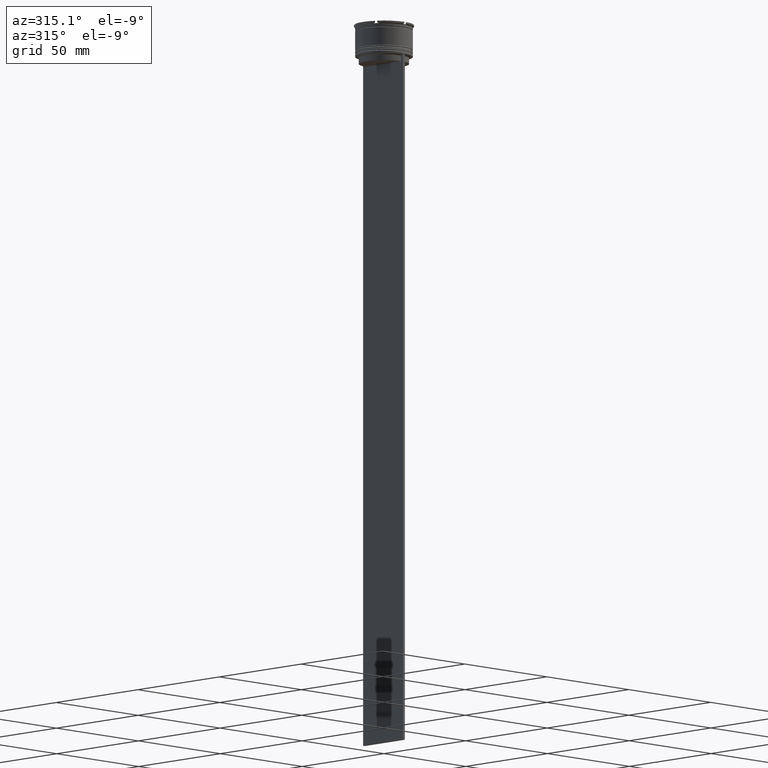
[diagram: clean part render]
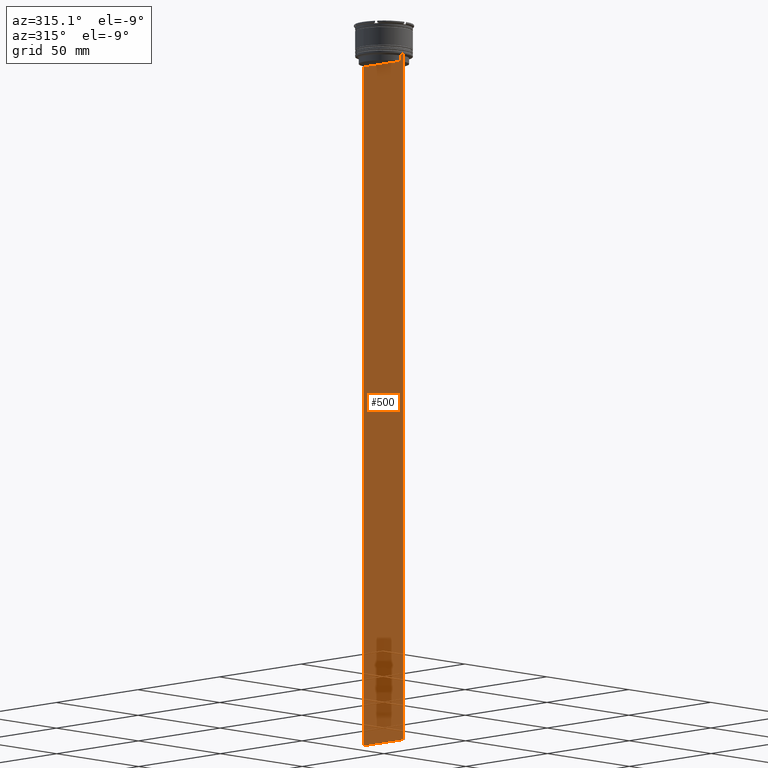
[diagram: same view with one face highlighted and labeled with its STEP entity id]
A machine part, auxiliary view. The second image highlights one B-rep face of the part: STEP entity #500.
In plain terms, the highlighted planar face has unit normal (-1, 0, 0).
Its self-contained STEP definition (entity closure, byte-faithful):
#56 = DIRECTION ( 'NONE',  ( 0.000000000000000000, -1.000000000000000000, 0.000000000000000000 ) ) ;
#61 = CARTESIAN_POINT ( 'NONE',  ( -0.4999999999999997780, 11.22219891375843304, -14.16667035472756808 ) ) ;
#83 = VERTEX_POINT ( 'NONE', #2426 ) ;
#157 = CARTESIAN_POINT ( 'NONE',  ( -0.4999999999999997780, 10.88852607105296322, -14.50000000000000000 ) ) ;
#241 = DIRECTION ( 'NONE',  ( 0.000000000000000000, -1.000000000000000000, 0.000000000000000000 ) ) ;
#290 = LINE ( 'NONE', #1189, #846 ) ;
#335 = VERTEX_POINT ( 'NONE', #813 ) ;
#364 = DIRECTION ( 'NONE',  ( 0.000000000000000000, 0.000000000000000000, -1.000000000000000000 ) ) ;
#387 = CARTESIAN_POINT ( 'NONE',  ( -0.4999999999999997780, 11.38902980942626719, -14.00000000000000178 ) ) ;
#393 = EDGE_CURVE ( 'NONE', #2155, #495, #1948, .T. ) ;
#495 = VERTEX_POINT ( 'NONE', #2180 ) ;
#500 = ADVANCED_FACE ( 'NONE', ( #2194 ), #1361, .T. ) ;
#523 = CARTESIAN_POINT ( 'NONE',  ( -0.4999999999999997780, -11.22219891450652973, -14.16667035398018903 ) ) ;
#535 = CARTESIAN_POINT ( 'NONE',  ( -0.4999999999999997780, -10.88852607105296322, -14.50000000000000000 ) ) ;
#540 = VERTEX_POINT ( 'NONE', #1348 ) ;
#621 = VERTEX_POINT ( 'NONE', #387 ) ;
#659 = VECTOR ( 'NONE', #1637, 1000.000000000000000 ) ;
#679 = VERTEX_POINT ( 'NONE', #157 ) ;
#688 = DIRECTION ( 'NONE',  ( 0.000000000000000000, 0.000000000000000000, 1.000000000000000000 ) ) ;
#721 = ORIENTED_EDGE ( 'NONE', *, *, #2238, .F. ) ;
#793 = CARTESIAN_POINT ( 'NONE',  ( -0.4999999999999997780, -12.25000000000000711, -14.00000000000000178 ) ) ;
#799 = DIRECTION ( 'NONE',  ( 0.000000000000000000, 0.000000000000000000, -1.000000000000000000 ) ) ;
#813 = CARTESIAN_POINT ( 'NONE',  ( -0.4999999999999997780, -11.38902980942626719, -14.00000000000000178 ) ) ;
#846 = VECTOR ( 'NONE', #364, 1000.000000000000000 ) ;
#900 = EDGE_CURVE ( 'NONE', #540, #1810, #1529, .T. ) ;
#931 = VECTOR ( 'NONE', #2228, 1000.000000000000000 ) ;
#954 = VERTEX_POINT ( 'NONE', #2548 ) ;
#979 = DIRECTION ( 'NONE',  ( -0.000000000000000000, -0.000000000000000000, 1.000000000000000000 ) ) ;
#1004 = CARTESIAN_POINT ( 'NONE',  ( -0.4999999999999997780, -10.88852607105296322, 0.000000000000000000 ) ) ;
#1036 = LINE ( 'NONE', #793, #659 ) ;
#1065 = CARTESIAN_POINT ( 'NONE',  ( -0.4999999999999997780, -10.88852607105296322, -14.50000000000000000 ) ) ;
#1072 = ORIENTED_EDGE ( 'NONE', *, *, #1636, .F. ) ;
#1116 = VECTOR ( 'NONE', #241, 1000.000000000000000 ) ;
#1189 = CARTESIAN_POINT ( 'NONE',  ( -0.4999999999999997780, 12.24999999999999289, 10.52039967047845792 ) ) ;
#1211 = ORIENTED_EDGE ( 'NONE', *, *, #2574, .T. ) ;
#1214 = EDGE_CURVE ( 'NONE', #621, #679, #1317, .T. ) ;
#1241 = VECTOR ( 'NONE', #979, 1000.000000000000000 ) ;
#1243 = VECTOR ( 'NONE', #799, 1000.000000000000000 ) ;
#1273 = ORIENTED_EDGE ( 'NONE', *, *, #900, .F. ) ;
#1317 = B_SPLINE_CURVE_WITH_KNOTS ( 'NONE', 3,
 ( #2684, #61, #2274, #2247 ),
 .UNSPECIFIED., .F., .F.,
 ( 4, 4 ),
 ( 0.01935560801904634073, 0.02006307108468586772 ),
 .UNSPECIFIED. ) ;
#1344 = ORIENTED_EDGE ( 'NONE', *, *, #1771, .F. ) ;
#1348 = CARTESIAN_POINT ( 'NONE',  ( -0.4999999999999997780, 10.88852607105296144, -17.00000000000000000 ) ) ;
#1361 = PLANE ( 'NONE',  #2607 ) ;
#1380 = LINE ( 'NONE', #1984, #931 ) ;
#1381 = B_SPLINE_CURVE_WITH_KNOTS ( 'NONE', 3,
 ( #535, #2465, #523, #1399 ),
 .UNSPECIFIED., .F., .F.,
 ( 4, 4 ),
 ( 0.05041323384703224469, 0.05112713601261603680 ),
 .UNSPECIFIED. ) ;
#1399 = CARTESIAN_POINT ( 'NONE',  ( -0.4999999999999997780, -11.38902980942626719, -14.00000000000000178 ) ) ;
#1420 = CARTESIAN_POINT ( 'NONE',  ( -0.4999999999999997780, -12.25000000000000711, -14.00000000000000178 ) ) ;
#1521 = ORIENTED_EDGE ( 'NONE', *, *, #2023, .F. ) ;
#1529 = LINE ( 'NONE', #2392, #1116 ) ;
#1636 = EDGE_CURVE ( 'NONE', #335, #2155, #2000, .T. ) ;
#1637 = DIRECTION ( 'NONE',  ( 0.000000000000000000, -1.000000000000000000, 0.000000000000000000 ) ) ;
#1745 = CARTESIAN_POINT ( 'NONE',  ( -0.4999999999999997780, -12.25000000000000711, 10.52039967047845792 ) ) ;
#1771 = EDGE_CURVE ( 'NONE', #1810, #1926, #1852, .T. ) ;
#1796 = EDGE_CURVE ( 'NONE', #954, #621, #1036, .T. ) ;
#1800 = VECTOR ( 'NONE', #2711, 1000.000000000000000 ) ;
#1810 = VERTEX_POINT ( 'NONE', #2294 ) ;
#1849 = LINE ( 'NONE', #2700, #1800 ) ;
#1852 = LINE ( 'NONE', #1004, #1241 ) ;
#1884 = CARTESIAN_POINT ( 'NONE',  ( -0.4999999999999997780, -12.25000000000000711, 10.52039967047845792 ) ) ;
#1926 = VERTEX_POINT ( 'NONE', #1065 ) ;
#1930 = ORIENTED_EDGE ( 'NONE', *, *, #1214, .F. ) ;
#1948 = LINE ( 'NONE', #1884, #1243 ) ;
#1973 = DIRECTION ( 'NONE',  ( -1.000000000000000000, 0.000000000000000000, 0.000000000000000000 ) ) ;
#1984 = CARTESIAN_POINT ( 'NONE',  ( -0.4999999999999997780, -12.25000000000000711, -314.0000000000000000 ) ) ;
#2000 = LINE ( 'NONE', #2220, #2163 ) ;
#2014 = ORIENTED_EDGE ( 'NONE', *, *, #393, .F. ) ;
#2023 = EDGE_CURVE ( 'NONE', #495, #83, #1380, .T. ) ;
#2135 = EDGE_CURVE ( 'NONE', #679, #540, #1849, .T. ) ;
#2136 = ORIENTED_EDGE ( 'NONE', *, *, #2135, .F. ) ;
#2155 = VERTEX_POINT ( 'NONE', #1420 ) ;
#2162 = EDGE_LOOP ( 'NONE', ( #1930, #2413, #1211, #1521, #2014, #1072, #721, #1344, #1273, #2136 ) ) ;
#2163 = VECTOR ( 'NONE', #56, 1000.000000000000000 ) ;
#2180 = CARTESIAN_POINT ( 'NONE',  ( -0.4999999999999997780, -12.25000000000000711, -314.0000000000000000 ) ) ;
#2194 = FACE_OUTER_BOUND ( 'NONE', #2162, .T. ) ;
#2220 = CARTESIAN_POINT ( 'NONE',  ( -0.4999999999999997780, -12.25000000000000711, -14.00000000000000178 ) ) ;
#2228 = DIRECTION ( 'NONE',  ( 0.000000000000000000, 1.000000000000000000, 0.000000000000000000 ) ) ;
#2238 = EDGE_CURVE ( 'NONE', #1926, #335, #1381, .T. ) ;
#2247 = CARTESIAN_POINT ( 'NONE',  ( -0.4999999999999997780, 10.88852607105296322, -14.50000000000000000 ) ) ;
#2274 = CARTESIAN_POINT ( 'NONE',  ( -0.4999999999999997780, 11.05536450345590538, -14.33333719074559376 ) ) ;
#2294 = CARTESIAN_POINT ( 'NONE',  ( -0.4999999999999997780, -10.88852607105296144, -17.00000000000000000 ) ) ;
#2392 = CARTESIAN_POINT ( 'NONE',  ( -0.4999999999999997780, 10.90000000000000213, -17.00000000000000000 ) ) ;
#2413 = ORIENTED_EDGE ( 'NONE', *, *, #1796, .F. ) ;
#2426 = CARTESIAN_POINT ( 'NONE',  ( -0.4999999999999997780, 12.24999999999999289, -314.0000000000000000 ) ) ;
#2465 = CARTESIAN_POINT ( 'NONE',  ( -0.4999999999999997780, -11.05536450423839057, -14.33333718996393280 ) ) ;
#2548 = CARTESIAN_POINT ( 'NONE',  ( -0.4999999999999997780, 12.24999999999999289, -14.00000000000000178 ) ) ;
#2574 = EDGE_CURVE ( 'NONE', #954, #83, #290, .T. ) ;
#2607 = AXIS2_PLACEMENT_3D ( 'NONE', #1745, #1973, #688 ) ;
#2684 = CARTESIAN_POINT ( 'NONE',  ( -0.4999999999999997780, 11.38902980942626719, -14.00000000000000178 ) ) ;
#2700 = CARTESIAN_POINT ( 'NONE',  ( -0.4999999999999997780, 10.88852607105296322, 0.000000000000000000 ) ) ;
#2711 = DIRECTION ( 'NONE',  ( 0.000000000000000000, 0.000000000000000000, -1.000000000000000000 ) ) ;